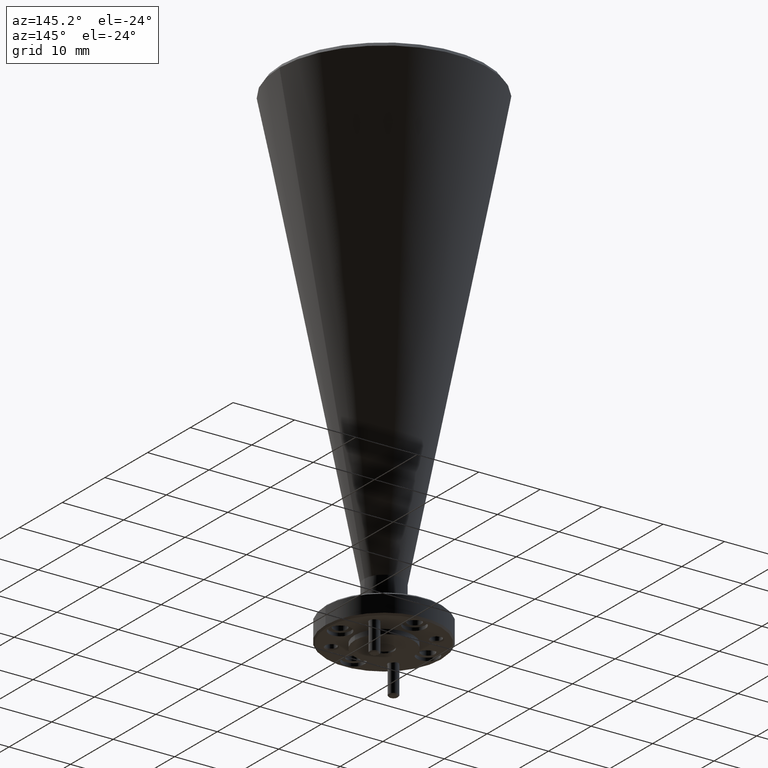
[diagram: clean part render]
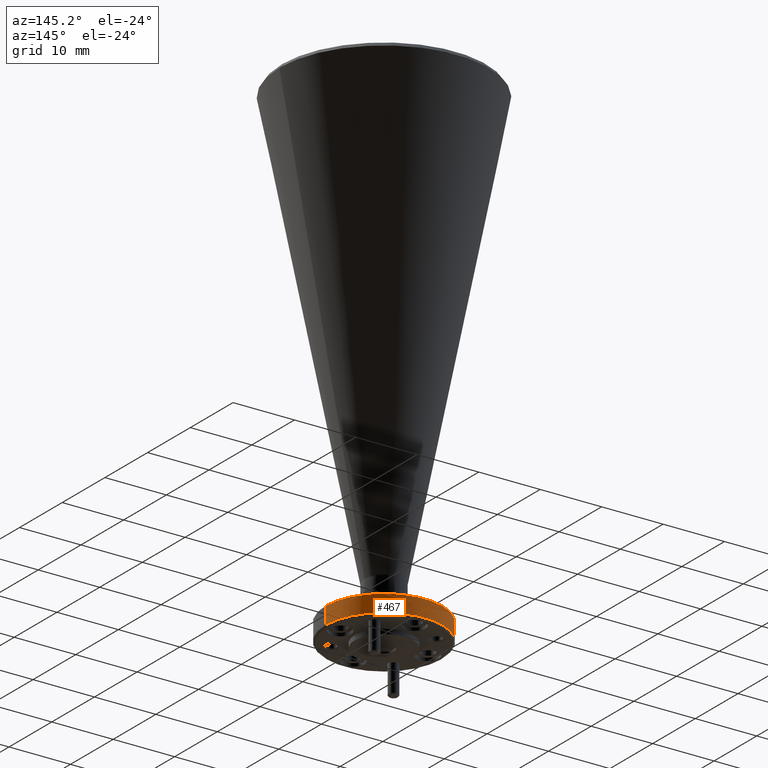
[diagram: same view with one face highlighted and labeled with its STEP entity id]
A machine part, auxiliary view. The second image highlights one B-rep face of the part: STEP entity #467.
In plain terms, the highlighted cylindrical surface (partial cylindrical patch) has radius 9.525 mm, axis along (-0, -0, 1).
Its self-contained STEP definition (entity closure, byte-faithful):
#44 = EDGE_CURVE ( 'NONE', #2094, #555, #298, .T. ) ;
#61 = DIRECTION ( 'NONE',  ( -0.0000000000000000000, -0.0000000000000000000, 1.000000000000000000 ) ) ;
#85 = CARTESIAN_POINT ( 'NONE',  ( 0.8240414346720549300, 1.390276906475814300, -0.4061406525522079900 ) ) ;
#122 = CARTESIAN_POINT ( 'NONE',  ( 1.574041434672054800, 1.390276906475814300, 5.678405754474122900 ) ) ;
#166 = CARTESIAN_POINT ( 'NONE',  ( 1.574041434672054800, 1.390276906475814300, -0.5161406525522087600 ) ) ;
#168 = DIRECTION ( 'NONE',  ( -0.0000000000000000000, -0.0000000000000000000, 1.000000000000000000 ) ) ;
#200 = EDGE_CURVE ( 'NONE', #826, #555, #600, .T. ) ;
#221 = EDGE_CURVE ( 'NONE', #578, #2094, #323, .T. ) ;
#298 = CIRCLE ( 'NONE', #1172, 0.3749999999999999400 ) ;
#307 = CARTESIAN_POINT ( 'NONE',  ( 0.8240414346720549300, 1.390276906475814300, 5.678405754474122900 ) ) ;
#323 = LINE ( 'NONE', #307, #1478 ) ;
#342 = ORIENTED_EDGE ( 'NONE', *, *, #221, .T. ) ;
#467 = ADVANCED_FACE ( 'NONE', ( #805 ), #1672, .T. ) ;
#555 = VERTEX_POINT ( 'NONE', #1328 ) ;
#578 = VERTEX_POINT ( 'NONE', #1311 ) ;
#600 = LINE ( 'NONE', #122, #1701 ) ;
#713 = AXIS2_PLACEMENT_3D ( 'NONE', #1973, #979, #1637 ) ;
#722 = AXIS2_PLACEMENT_3D ( 'NONE', #1676, #61, #1186 ) ;
#791 = EDGE_CURVE ( 'NONE', #826, #578, #1184, .T. ) ;
#805 = FACE_OUTER_BOUND ( 'NONE', #1731, .T. ) ;
#826 = VERTEX_POINT ( 'NONE', #166 ) ;
#925 = DIRECTION ( 'NONE',  ( -0.0000000000000000000, -0.0000000000000000000, 1.000000000000000000 ) ) ;
#979 = DIRECTION ( 'NONE',  ( -0.0000000000000000000, -0.0000000000000000000, 1.000000000000000000 ) ) ;
#1066 = DIRECTION ( 'NONE',  ( 0.0000000000000000000, 0.0000000000000000000, -1.000000000000000000 ) ) ;
#1172 = AXIS2_PLACEMENT_3D ( 'NONE', #1432, #1066, #1246 ) ;
#1184 = CIRCLE ( 'NONE', #713, 0.3749999999999999400 ) ;
#1186 = DIRECTION ( 'NONE',  ( 1.000000000000000000, 0.0000000000000000000, 0.0000000000000000000 ) ) ;
#1204 = ORIENTED_EDGE ( 'NONE', *, *, #44, .T. ) ;
#1246 = DIRECTION ( 'NONE',  ( -1.000000000000000000, 0.0000000000000000000, 0.0000000000000000000 ) ) ;
#1311 = CARTESIAN_POINT ( 'NONE',  ( 0.8240414346720549300, 1.390276906475814300, -0.5161406525522087600 ) ) ;
#1328 = CARTESIAN_POINT ( 'NONE',  ( 1.574041434672054800, 1.390276906475814300, -0.4061406525522079900 ) ) ;
#1432 = CARTESIAN_POINT ( 'NONE',  ( 1.199041434672055000, 1.390276906475814300, -0.4061406525522079900 ) ) ;
#1478 = VECTOR ( 'NONE', #168, 39.37007874015748100 ) ;
#1578 = ORIENTED_EDGE ( 'NONE', *, *, #200, .F. ) ;
#1637 = DIRECTION ( 'NONE',  ( 1.000000000000000000, 0.0000000000000000000, 0.0000000000000000000 ) ) ;
#1672 = CYLINDRICAL_SURFACE ( 'NONE', #722, 0.3749999999999999400 ) ;
#1676 = CARTESIAN_POINT ( 'NONE',  ( 1.199041434672055000, 1.390276906475814300, 5.678405754474122900 ) ) ;
#1701 = VECTOR ( 'NONE', #925, 39.37007874015748100 ) ;
#1731 = EDGE_LOOP ( 'NONE', ( #1776, #342, #1204, #1578 ) ) ;
#1776 = ORIENTED_EDGE ( 'NONE', *, *, #791, .T. ) ;
#1973 = CARTESIAN_POINT ( 'NONE',  ( 1.199041434672055000, 1.390276906475814300, -0.5161406525522087600 ) ) ;
#2094 = VERTEX_POINT ( 'NONE', #85 ) ;